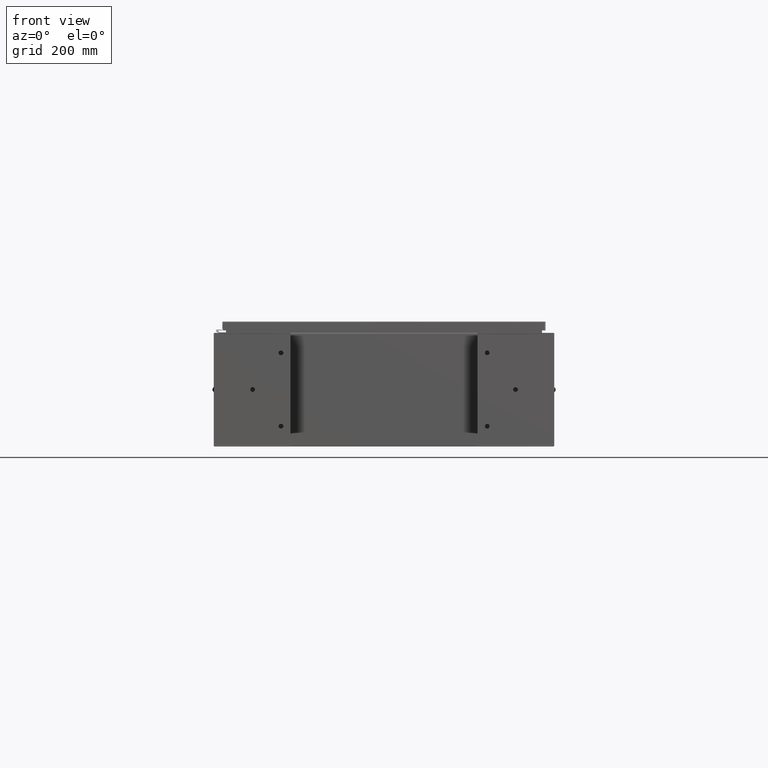
[diagram: clean part render]
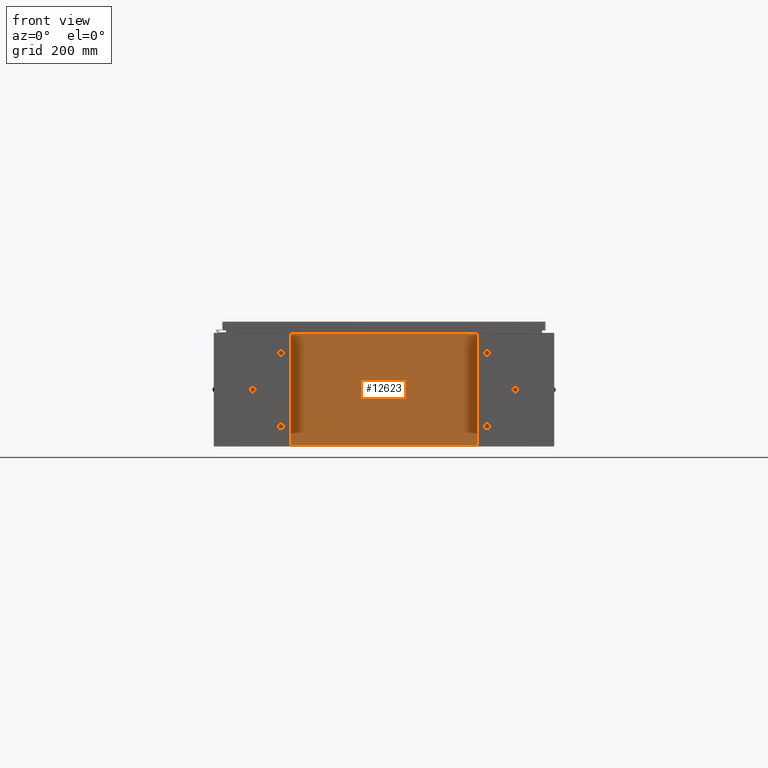
[diagram: same view with one face highlighted and labeled with its STEP entity id]
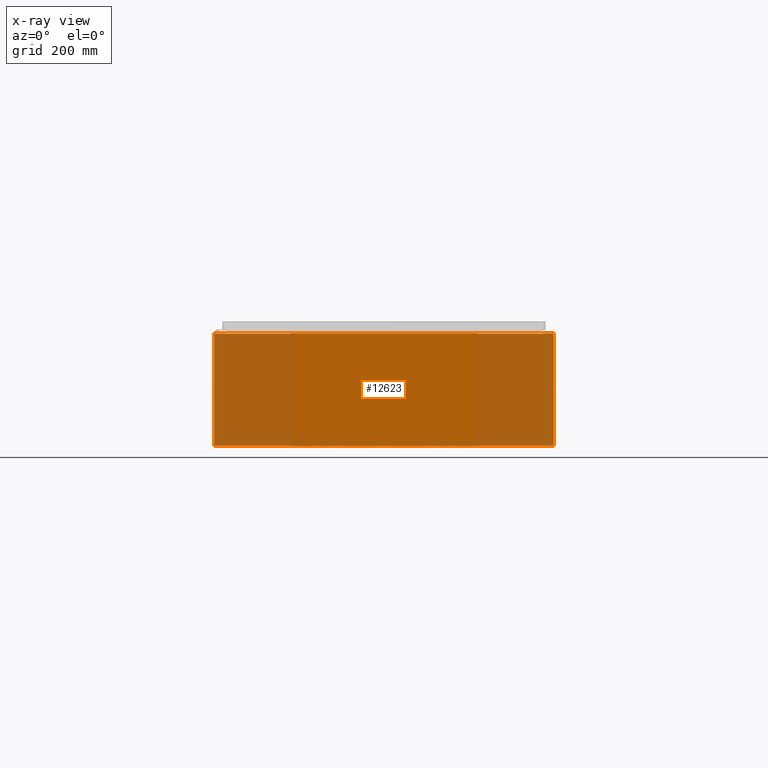
[diagram: x-ray of the same camera — body ghosted, the highlighted face saturated]
A machine part, front view. The second image highlights one B-rep face of the part: STEP entity #12623.
The next image is the same camera in x-ray: the body ghosted, the highlighted face saturated — about 44% of this face is hidden behind the body in this view.
In plain terms, the highlighted planar face has unit normal (-0, 1, -0).
Its self-contained STEP definition (entity closure, byte-faithful):
#38 = EDGE_CURVE ( 'NONE', #46788, #39505, #49834, .T. ) ;
#392 = CARTESIAN_POINT ( 'NONE',  ( 16.63720000000000400, 0.0000000000000000000, 5.874949999999999200 ) ) ;
#2637 = CARTESIAN_POINT ( 'NONE',  ( 16.63720000000000400, 0.0000000000000000000, 5.912299999999999200 ) ) ;
#2858 = LINE ( 'NONE', #24725, #45361 ) ;
#2885 = DIRECTION ( 'NONE',  ( 0.0000000000000000000, -0.0000000000000000000, -1.000000000000000000 ) ) ;
#3679 = DIRECTION ( 'NONE',  ( -0.0000000000000000000, 1.000000000000000000, -0.0000000000000000000 ) ) ;
#4006 = DIRECTION ( 'NONE',  ( 0.0000000000000000000, 0.0000000000000000000, -1.000000000000000000 ) ) ;
#4255 = VECTOR ( 'NONE', #53149, 39.37007874015748100 ) ;
#4380 = VERTEX_POINT ( 'NONE', #36942 ) ;
#5057 = VERTEX_POINT ( 'NONE', #24252 ) ;
#5901 = CIRCLE ( 'NONE', #30293, 0.01867499999999949400 ) ;
#6997 = CARTESIAN_POINT ( 'NONE',  ( -16.67455000000000000, 0.0000000000000000000, 5.925299999999999100 ) ) ;
#8656 = ORIENTED_EDGE ( 'NONE', *, *, #26840, .T. ) ;
#11229 = VECTOR ( 'NONE', #43073, 39.37007874015748100 ) ;
#11318 = ORIENTED_EDGE ( 'NONE', *, *, #31790, .F. ) ;
#12524 = DIRECTION ( 'NONE',  ( 1.000000000000000000, 0.0000000000000000000, 3.048036009064577000E-017 ) ) ;
#12623 = ADVANCED_FACE ( 'NONE', ( #19547 ), #41545, .F. ) ;
#13025 = CIRCLE ( 'NONE', #21442, 0.01867499999999949400 ) ;
#13260 = VERTEX_POINT ( 'NONE', #6997 ) ;
#13876 = VERTEX_POINT ( 'NONE', #34880 ) ;
#14101 = EDGE_CURVE ( 'NONE', #21655, #16008, #13025, .T. ) ;
#15886 = CARTESIAN_POINT ( 'NONE',  ( 16.67454999999949500, -0.0000000000000000000, -1.447541957108302900E-012 ) ) ;
#16008 = VERTEX_POINT ( 'NONE', #50774 ) ;
#16282 = VECTOR ( 'NONE', #4006, 39.37007874015748100 ) ;
#16604 = ORIENTED_EDGE ( 'NONE', *, *, #38, .F. ) ;
#17206 = EDGE_CURVE ( 'NONE', #5057, #49244, #36905, .T. ) ;
#17528 = DIRECTION ( 'NONE',  ( 0.0000000000000000000, 0.0000000000000000000, 1.000000000000000000 ) ) ;
#18392 = DIRECTION ( 'NONE',  ( 0.0000000000000000000, 0.0000000000000000000, -1.000000000000000000 ) ) ;
#19321 = AXIS2_PLACEMENT_3D ( 'NONE', #20712, #49854, #2885 ) ;
#19547 = FACE_OUTER_BOUND ( 'NONE', #25373, .T. ) ;
#20415 = CARTESIAN_POINT ( 'NONE',  ( -17.92529999999999600, 0.0000000000000000000, 5.925299999999999100 ) ) ;
#20568 = LINE ( 'NONE', #52125, #52107 ) ;
#20712 = CARTESIAN_POINT ( 'NONE',  ( 0.0000000000000000000, 0.0000000000000000000, 0.0000000000000000000 ) ) ;
#21442 = AXIS2_PLACEMENT_3D ( 'NONE', #30418, #43127, #18392 ) ;
#21655 = VERTEX_POINT ( 'NONE', #23610 ) ;
#23060 = ORIENTED_EDGE ( 'NONE', *, *, #41672, .T. ) ;
#23517 = EDGE_CURVE ( 'NONE', #16008, #13260, #20568, .T. ) ;
#23610 = CARTESIAN_POINT ( 'NONE',  ( -16.63720000000000000, -0.0000000000000000000, 5.874949999999999200 ) ) ;
#24252 = CARTESIAN_POINT ( 'NONE',  ( -17.92529999999999600, 0.0000000000000000000, -5.925300000000000000 ) ) ;
#24531 = DIRECTION ( 'NONE',  ( 1.000000000000000000, 0.0000000000000000000, 3.048036009064577000E-017 ) ) ;
#24725 = CARTESIAN_POINT ( 'NONE',  ( -17.92529999999999600, 0.0000000000000000000, 5.925299999999999100 ) ) ;
#25373 = EDGE_LOOP ( 'NONE', ( #30817, #27246, #37520, #8656, #16604, #11318, #37524, #38551, #36310, #23060, #34607, #37306 ) ) ;
#26840 = EDGE_CURVE ( 'NONE', #32239, #39505, #50556, .T. ) ;
#27135 = DIRECTION ( 'NONE',  ( 1.000000000000000000, 0.0000000000000000000, 0.0000000000000000000 ) ) ;
#27246 = ORIENTED_EDGE ( 'NONE', *, *, #14101, .F. ) ;
#27933 = EDGE_CURVE ( 'NONE', #4380, #41393, #44002, .T. ) ;
#28188 = CARTESIAN_POINT ( 'NONE',  ( -17.92529999999999600, 0.0000000000000000000, 5.925299999999999100 ) ) ;
#28295 = EDGE_CURVE ( 'NONE', #32239, #21655, #47845, .T. ) ;
#28364 = CARTESIAN_POINT ( 'NONE',  ( 16.65587500000000500, 0.0000000000000000000, 5.874949999999999200 ) ) ;
#29991 = CARTESIAN_POINT ( 'NONE',  ( 16.63720000000000400, 0.0000000000000000000, 0.0000000000000000000 ) ) ;
#30293 = AXIS2_PLACEMENT_3D ( 'NONE', #28364, #3679, #32507 ) ;
#30418 = CARTESIAN_POINT ( 'NONE',  ( -16.65587499999999800, 0.0000000000000000000, 5.874949999999999200 ) ) ;
#30817 = ORIENTED_EDGE ( 'NONE', *, *, #23517, .F. ) ;
#30951 = VECTOR ( 'NONE', #24531, 39.37007874015748100 ) ;
#31319 = CARTESIAN_POINT ( 'NONE',  ( 16.67455000000000700, 0.0000000000000000000, 5.925300000000000000 ) ) ;
#31790 = EDGE_CURVE ( 'NONE', #13876, #46788, #5901, .T. ) ;
#32239 = VERTEX_POINT ( 'NONE', #39434 ) ;
#32249 = LINE ( 'NONE', #20415, #30951 ) ;
#32507 = DIRECTION ( 'NONE',  ( 0.0000000000000000000, 0.0000000000000000000, -1.000000000000000000 ) ) ;
#34391 = EDGE_CURVE ( 'NONE', #39471, #13876, #40413, .T. ) ;
#34607 = ORIENTED_EDGE ( 'NONE', *, *, #17206, .T. ) ;
#34880 = CARTESIAN_POINT ( 'NONE',  ( 16.67455000000000400, 0.0000000000000000000, 5.874949999999999200 ) ) ;
#36310 = ORIENTED_EDGE ( 'NONE', *, *, #27933, .T. ) ;
#36587 = DIRECTION ( 'NONE',  ( -8.681145560799821800E-014, 0.0000000000000000000, -1.000000000000000000 ) ) ;
#36905 = LINE ( 'NONE', #48128, #39474 ) ;
#36942 = CARTESIAN_POINT ( 'NONE',  ( 17.92530000000000400, 0.0000000000000000000, 5.925300000000000000 ) ) ;
#36946 = CARTESIAN_POINT ( 'NONE',  ( -16.63720000000000000, -0.0000000000000000000, 0.0000000000000000000 ) ) ;
#37181 = CARTESIAN_POINT ( 'NONE',  ( 17.92530000000000400, 0.0000000000000000000, 5.925300000000000000 ) ) ;
#37306 = ORIENTED_EDGE ( 'NONE', *, *, #49325, .T. ) ;
#37520 = ORIENTED_EDGE ( 'NONE', *, *, #28295, .F. ) ;
#37524 = ORIENTED_EDGE ( 'NONE', *, *, #34391, .F. ) ;
#38551 = ORIENTED_EDGE ( 'NONE', *, *, #51813, .T. ) ;
#39127 = VECTOR ( 'NONE', #36587, 39.37007874015748100 ) ;
#39434 = CARTESIAN_POINT ( 'NONE',  ( -16.63720000000000000, 3.756290991288361700E-016, 5.912299999999999200 ) ) ;
#39471 = VERTEX_POINT ( 'NONE', #31319 ) ;
#39474 = VECTOR ( 'NONE', #40487, 39.37007874015748100 ) ;
#39505 = VERTEX_POINT ( 'NONE', #2637 ) ;
#40413 = LINE ( 'NONE', #15886, #39127 ) ;
#40487 = DIRECTION ( 'NONE',  ( -0.0000000000000000000, -0.0000000000000000000, 1.000000000000000000 ) ) ;
#41393 = VERTEX_POINT ( 'NONE', #45484 ) ;
#41429 = VECTOR ( 'NONE', #17528, 39.37007874015748100 ) ;
#41545 = PLANE ( 'NONE',  #19321 ) ;
#41672 = EDGE_CURVE ( 'NONE', #41393, #5057, #48073, .T. ) ;
#42163 = VECTOR ( 'NONE', #27135, 39.37007874015748100 ) ;
#43073 = DIRECTION ( 'NONE',  ( 0.0000000000000000000, 0.0000000000000000000, -1.000000000000000000 ) ) ;
#43127 = DIRECTION ( 'NONE',  ( -0.0000000000000000000, 1.000000000000000000, -0.0000000000000000000 ) ) ;
#44002 = LINE ( 'NONE', #37181, #11229 ) ;
#45361 = VECTOR ( 'NONE', #12524, 39.37007874015748100 ) ;
#45484 = CARTESIAN_POINT ( 'NONE',  ( 17.92530000000000400, 0.0000000000000000000, -5.925300000000000000 ) ) ;
#46788 = VERTEX_POINT ( 'NONE', #392 ) ;
#47845 = LINE ( 'NONE', #36946, #16282 ) ;
#48073 = LINE ( 'NONE', #52968, #4255 ) ;
#48128 = CARTESIAN_POINT ( 'NONE',  ( -17.92529999999999600, 0.0000000000000000000, 5.925299999999999100 ) ) ;
#49244 = VERTEX_POINT ( 'NONE', #28188 ) ;
#49325 = EDGE_CURVE ( 'NONE', #49244, #13260, #2858, .T. ) ;
#49834 = LINE ( 'NONE', #29991, #41429 ) ;
#49854 = DIRECTION ( 'NONE',  ( 0.0000000000000000000, -1.000000000000000000, 0.0000000000000000000 ) ) ;
#50556 = LINE ( 'NONE', #53356, #42163 ) ;
#50774 = CARTESIAN_POINT ( 'NONE',  ( -16.67455000000000000, 0.0000000000000000000, 5.874949999999999200 ) ) ;
#51813 = EDGE_CURVE ( 'NONE', #39471, #4380, #32249, .T. ) ;
#52107 = VECTOR ( 'NONE', #53259, 39.37007874015748100 ) ;
#52125 = CARTESIAN_POINT ( 'NONE',  ( -16.67455000000000000, -0.0000000000000000000, 0.0000000000000000000 ) ) ;
#52968 = CARTESIAN_POINT ( 'NONE',  ( -17.92529999999999600, 0.0000000000000000000, -5.925300000000000000 ) ) ;
#53149 = DIRECTION ( 'NONE',  ( -1.000000000000000000, -0.0000000000000000000, -0.0000000000000000000 ) ) ;
#53259 = DIRECTION ( 'NONE',  ( 0.0000000000000000000, 0.0000000000000000000, 1.000000000000000000 ) ) ;
#53356 = CARTESIAN_POINT ( 'NONE',  ( -16.63720000000000000, 3.756290991288361700E-016, 5.912299999999999200 ) ) ;